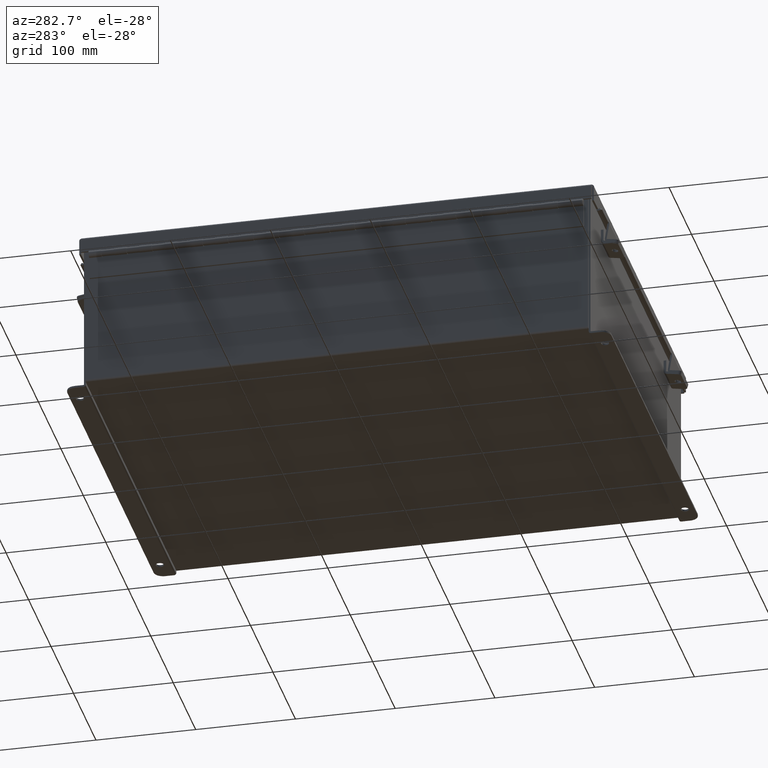
[diagram: clean part render]
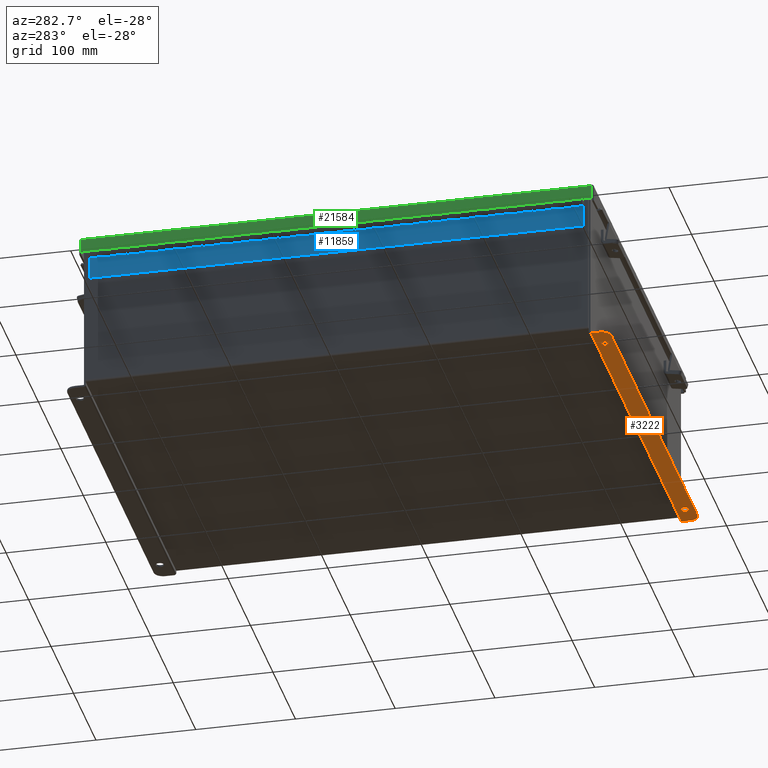
[diagram: same view with three faces highlighted in distinct colors, each labeled with its STEP entity id]
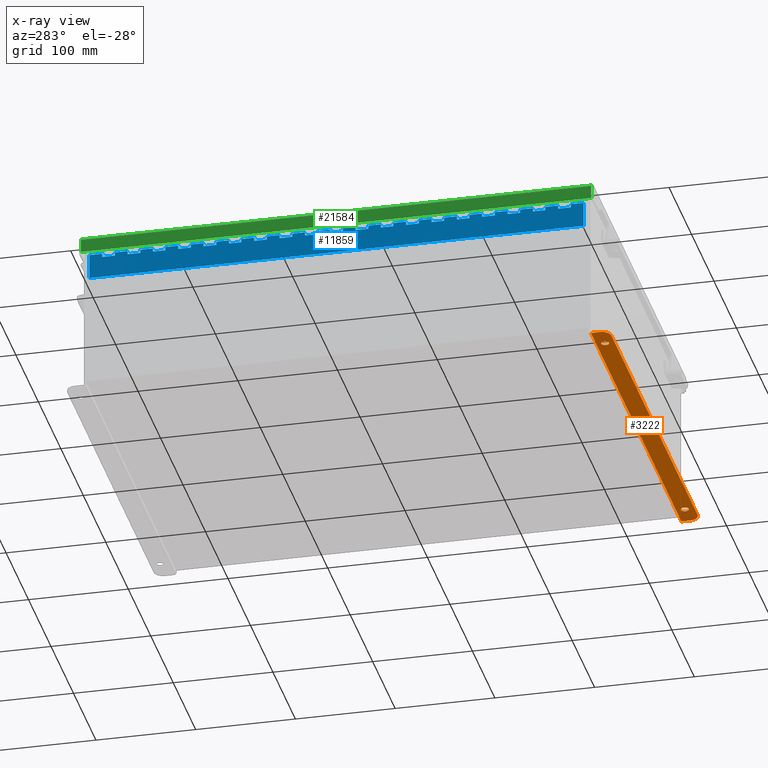
[diagram: x-ray of the same camera — body ghosted, the three highlighted faces saturated]
A machine part, auxiliary view with three faces highlighted in distinct colors.
The next image is the same camera in x-ray (body ghosted, the three faces saturated) — at least one of them is partly hidden behind the body in this view.
Their STEP definitions:

[orange] entity #3222 — the highlighted planar face has unit normal (0, -0, 1).
#298 = ORIENTED_EDGE ( 'NONE', *, *, #8450, .F. ) ;
#449 = ORIENTED_EDGE ( 'NONE', *, *, #20706, .T. ) ;
#467 = VECTOR ( 'NONE', #3204, 39.37007874015748100 ) ;
#469 = EDGE_CURVE ( 'NONE', #15045, #21324, #19618, .T. ) ;
#945 = DIRECTION ( 'NONE',  ( 0.0000000000000000000, -3.362274453740631800E-015, -1.000000000000000000 ) ) ;
#1015 = DIRECTION ( 'NONE',  ( -4.919856193148104900E-031, -1.000000000000000000, 3.702694488566362300E-015 ) ) ;
#1026 = VERTEX_POINT ( 'NONE', #6190 ) ;
#1782 = AXIS2_PLACEMENT_3D ( 'NONE', #19832, #9484, #21564 ) ;
#1811 = CIRCLE ( 'NONE', #1782, 0.3750000000000000600 ) ;
#1875 = ORIENTED_EDGE ( 'NONE', *, *, #9212, .F. ) ;
#2251 = CARTESIAN_POINT ( 'NONE',  ( 0.0000000000000000000, -1.092739197465705300E-014, -3.187000000000000300 ) ) ;
#3204 = DIRECTION ( 'NONE',  ( 4.919856193148104900E-031, 1.000000000000000000, -3.702694488566362300E-015 ) ) ;
#3222 = ADVANCED_FACE ( 'NONE', ( #14645, #18676, #5442 ), #13293, .F. ) ;
#3661 = CARTESIAN_POINT ( 'NONE',  ( 7.925299999999998200, 0.01300000000000010700, -3.187000000000000300 ) ) ;
#3877 = CARTESIAN_POINT ( 'NONE',  ( -7.925300000000000900, -1.092739197465705300E-014, -3.187000000000000300 ) ) ;
#4159 = CARTESIAN_POINT ( 'NONE',  ( -6.987800000000000900, 0.3627999999999986800, -3.187000000000001600 ) ) ;
#4717 = AXIS2_PLACEMENT_3D ( 'NONE', #13812, #10849, #14018 ) ;
#4843 = DIRECTION ( 'NONE',  ( 0.0000000000000000000, 1.000000000000000000, -3.502369222646487000E-015 ) ) ;
#5089 = CARTESIAN_POINT ( 'NONE',  ( 7.925299999999998200, 0.01300000000000229300, -3.187000000000000300 ) ) ;
#5302 = EDGE_CURVE ( 'NONE', #22197, #1026, #19408, .T. ) ;
#5342 = EDGE_LOOP ( 'NONE', ( #7282, #449, #20590, #10933, #11490, #298 ) ) ;
#5442 = FACE_OUTER_BOUND ( 'NONE', #5342, .T. ) ;
#5535 = DIRECTION ( 'NONE',  ( 0.0000000000000000000, -3.362274453740631800E-015, -1.000000000000000000 ) ) ;
#5892 = DIRECTION ( 'NONE',  ( 0.0000000000000000000, 1.000000000000000000, -3.502369222646487000E-015 ) ) ;
#5907 = EDGE_CURVE ( 'NONE', #21471, #6631, #19643, .T. ) ;
#6190 = CARTESIAN_POINT ( 'NONE',  ( -7.925300000000000900, 0.3627999999999986800, -3.187000000000005600 ) ) ;
#6566 = CARTESIAN_POINT ( 'NONE',  ( -6.987800000000000900, 0.5187999999999988200, -3.187000000000002500 ) ) ;
#6631 = VERTEX_POINT ( 'NONE', #3661 ) ;
#7067 = CARTESIAN_POINT ( 'NONE',  ( -7.925300000000000900, 0.01300000000000010700, -3.187000000000000300 ) ) ;
#7282 = ORIENTED_EDGE ( 'NONE', *, *, #5302, .T. ) ;
#7542 = CIRCLE ( 'NONE', #11962, 0.1560000000000001900 ) ;
#7991 = ORIENTED_EDGE ( 'NONE', *, *, #469, .F. ) ;
#8165 = EDGE_LOOP ( 'NONE', ( #1875, #21107 ) ) ;
#8429 = AXIS2_PLACEMENT_3D ( 'NONE', #11341, #945, #13073 ) ;
#8450 = EDGE_CURVE ( 'NONE', #22197, #6631, #21657, .T. ) ;
#9212 = EDGE_CURVE ( 'NONE', #9324, #12936, #7542, .T. ) ;
#9324 = VERTEX_POINT ( 'NONE', #13721 ) ;
#9338 = LINE ( 'NONE', #21841, #13398 ) ;
#9484 = DIRECTION ( 'NONE',  ( -0.0000000000000000000, -3.702694488566362300E-015, -1.000000000000000000 ) ) ;
#10133 = VERTEX_POINT ( 'NONE', #18779 ) ;
#10666 = AXIS2_PLACEMENT_3D ( 'NONE', #2251, #17897, #14506 ) ;
#10786 = EDGE_LOOP ( 'NONE', ( #11308, #7991 ) ) ;
#10849 = DIRECTION ( 'NONE',  ( -0.0000000000000000000, -3.702694488566362300E-015, -1.000000000000000000 ) ) ;
#10869 = EDGE_CURVE ( 'NONE', #19820, #21471, #11943, .T. ) ;
#10933 = ORIENTED_EDGE ( 'NONE', *, *, #10869, .T. ) ;
#10944 = DIRECTION ( 'NONE',  ( 0.0000000000000000000, -3.362274453740631800E-015, -1.000000000000000000 ) ) ;
#11308 = ORIENTED_EDGE ( 'NONE', *, *, #14529, .F. ) ;
#11341 = CARTESIAN_POINT ( 'NONE',  ( 6.987799999999999100, 0.3628000000000008400, -3.187000000000001200 ) ) ;
#11490 = ORIENTED_EDGE ( 'NONE', *, *, #5907, .T. ) ;
#11885 = AXIS2_PLACEMENT_3D ( 'NONE', #4159, #16232, #5892 ) ;
#11943 = CIRCLE ( 'NONE', #4717, 0.3750000000000000600 ) ;
#11962 = AXIS2_PLACEMENT_3D ( 'NONE', #22244, #10944, #4843 ) ;
#12480 = DIRECTION ( 'NONE',  ( 1.000000000000000000, 4.910036603141682400E-031, -0.0000000000000000000 ) ) ;
#12936 = VERTEX_POINT ( 'NONE', #19572 ) ;
#13073 = DIRECTION ( 'NONE',  ( 0.0000000000000000000, 1.000000000000000000, -3.502369222646487000E-015 ) ) ;
#13293 = PLANE ( 'NONE',  #10666 ) ;
#13398 = VECTOR ( 'NONE', #18428, 39.37007874015748100 ) ;
#13695 = CARTESIAN_POINT ( 'NONE',  ( 7.550299999999998200, 0.7378000000000011200, -3.187000000000002900 ) ) ;
#13721 = CARTESIAN_POINT ( 'NONE',  ( 6.987799999999999100, 0.5188000000000010400, -3.187000000000001600 ) ) ;
#13812 = CARTESIAN_POINT ( 'NONE',  ( 7.550299999999998200, 0.3628000000000008400, -3.187000000000001200 ) ) ;
#14018 = DIRECTION ( 'NONE',  ( 0.0000000000000000000, -1.000000000000000000, 4.370956789862820400E-015 ) ) ;
#14506 = DIRECTION ( 'NONE',  ( -4.919856193148104900E-031, -1.000000000000000000, 3.702694488566362300E-015 ) ) ;
#14529 = EDGE_CURVE ( 'NONE', #21324, #15045, #17132, .T. ) ;
#14645 = FACE_BOUND ( 'NONE', #10786, .T. ) ;
#14695 = EDGE_CURVE ( 'NONE', #10133, #19820, #9338, .T. ) ;
#15034 = VECTOR ( 'NONE', #1015, 39.37007874015748100 ) ;
#15045 = VERTEX_POINT ( 'NONE', #17576 ) ;
#16232 = DIRECTION ( 'NONE',  ( 0.0000000000000000000, -3.362274453740631800E-015, -1.000000000000000000 ) ) ;
#16934 = CARTESIAN_POINT ( 'NONE',  ( 7.925299999999998200, -1.092739197465705300E-014, -3.187000000000000300 ) ) ;
#17132 = CIRCLE ( 'NONE', #11885, 0.1560000000000001900 ) ;
#17576 = CARTESIAN_POINT ( 'NONE',  ( -6.987799999999992900, 0.2067999999999984900, -3.187000000000001200 ) ) ;
#17897 = DIRECTION ( 'NONE',  ( 0.0000000000000000000, 3.702694488566362300E-015, 1.000000000000000000 ) ) ;
#18192 = DIRECTION ( 'NONE',  ( 0.0000000000000000000, 1.000000000000000000, -3.502369222646487000E-015 ) ) ;
#18414 = AXIS2_PLACEMENT_3D ( 'NONE', #21655, #5535, #18192 ) ;
#18428 = DIRECTION ( 'NONE',  ( 1.000000000000000000, 4.910036603141682400E-031, 0.0000000000000000000 ) ) ;
#18676 = FACE_BOUND ( 'NONE', #8165, .T. ) ;
#18779 = CARTESIAN_POINT ( 'NONE',  ( -7.550300000000000900, 0.7377999999999989000, -3.187000000000002900 ) ) ;
#19019 = CARTESIAN_POINT ( 'NONE',  ( 7.925299999999998200, 0.3628000000000008400, -3.187000000000001600 ) ) ;
#19408 = LINE ( 'NONE', #3877, #467 ) ;
#19572 = CARTESIAN_POINT ( 'NONE',  ( 6.987800000000008000, 0.2068000000000006800, -3.187000000000000700 ) ) ;
#19618 = CIRCLE ( 'NONE', #18414, 0.1560000000000001900 ) ;
#19643 = LINE ( 'NONE', #16934, #15034 ) ;
#19820 = VERTEX_POINT ( 'NONE', #13695 ) ;
#19832 = CARTESIAN_POINT ( 'NONE',  ( -7.550300000000000900, 0.3627999999999986800, -3.187000000000001200 ) ) ;
#20229 = EDGE_CURVE ( 'NONE', #12936, #9324, #20771, .T. ) ;
#20590 = ORIENTED_EDGE ( 'NONE', *, *, #14695, .T. ) ;
#20706 = EDGE_CURVE ( 'NONE', #1026, #10133, #1811, .T. ) ;
#20771 = CIRCLE ( 'NONE', #8429, 0.1560000000000001900 ) ;
#21107 = ORIENTED_EDGE ( 'NONE', *, *, #20229, .F. ) ;
#21324 = VERTEX_POINT ( 'NONE', #6566 ) ;
#21471 = VERTEX_POINT ( 'NONE', #19019 ) ;
#21564 = DIRECTION ( 'NONE',  ( 0.0000000000000000000, -1.000000000000000000, 4.370956789862820400E-015 ) ) ;
#21655 = CARTESIAN_POINT ( 'NONE',  ( -6.987800000000000900, 0.3627999999999986800, -3.187000000000001600 ) ) ;
#21657 = LINE ( 'NONE', #5089, #22205 ) ;
#21841 = CARTESIAN_POINT ( 'NONE',  ( -2.035385365534024800E-024, 0.7377999999999989000, -3.187000000000002900 ) ) ;
#22197 = VERTEX_POINT ( 'NONE', #7067 ) ;
#22205 = VECTOR ( 'NONE', #12480, 39.37007874015748100 ) ;
#22244 = CARTESIAN_POINT ( 'NONE',  ( 6.987799999999999100, 0.3628000000000008400, -3.187000000000001200 ) ) ;

[blue] entity #11859 — the highlighted planar face has unit normal (1, -0, 0).
#219 = CARTESIAN_POINT ( 'NONE',  ( 0.2730000000000000200, 8.500000000000000000, 0.0000000000000000000 ) ) ;
#224 = ORIENTED_EDGE ( 'NONE', *, *, #6878, .F. ) ;
#270 = VERTEX_POINT ( 'NONE', #5692 ) ;
#346 = DIRECTION ( 'NONE',  ( 0.0000000000000000000, 1.000000000000000000, 0.0000000000000000000 ) ) ;
#371 = DIRECTION ( 'NONE',  ( 0.0000000000000000000, 1.000000000000000000, 0.0000000000000000000 ) ) ;
#397 = ORIENTED_EDGE ( 'NONE', *, *, #9881, .F. ) ;
#448 = ORIENTED_EDGE ( 'NONE', *, *, #16978, .F. ) ;
#475 = VECTOR ( 'NONE', #5372, 39.37007874015748100 ) ;
#549 = VECTOR ( 'NONE', #9574, 39.37007874015748100 ) ;
#567 = VECTOR ( 'NONE', #19495, 39.37007874015748100 ) ;
#770 = FACE_OUTER_BOUND ( 'NONE', #4232, .T. ) ;
#788 = VERTEX_POINT ( 'NONE', #7934 ) ;
#865 = CARTESIAN_POINT ( 'NONE',  ( 0.1365000000000000100, 14.00000000000000000, -1.707404996040164500E-017 ) ) ;
#902 = VERTEX_POINT ( 'NONE', #14494 ) ;
#911 = CARTESIAN_POINT ( 'NONE',  ( 0.2730000000000000200, -8.000000000000000000, 0.0000000000000000000 ) ) ;
#939 = EDGE_CURVE ( 'NONE', #1260, #2361, #19599, .T. ) ;
#956 = VECTOR ( 'NONE', #2401, 39.37007874015748100 ) ;
#989 = LINE ( 'NONE', #6699, #9125 ) ;
#1085 = LINE ( 'NONE', #7810, #549 ) ;
#1168 = DIRECTION ( 'NONE',  ( 0.0000000000000000000, 1.000000000000000000, 0.0000000000000000000 ) ) ;
#1260 = VERTEX_POINT ( 'NONE', #22180 ) ;
#1323 = ORIENTED_EDGE ( 'NONE', *, *, #17205, .F. ) ;
#1365 = DIRECTION ( 'NONE',  ( -1.000000000000000000, 0.0000000000000000000, 0.0000000000000000000 ) ) ;
#1408 = EDGE_CURVE ( 'NONE', #15363, #5109, #7401, .T. ) ;
#1424 = VECTOR ( 'NONE', #10858, 39.37007874015748100 ) ;
#1454 = CARTESIAN_POINT ( 'NONE',  ( 0.0000000000000000000, 0.4999999999999996100, 0.0000000000000000000 ) ) ;
#1473 = VECTOR ( 'NONE', #3225, 39.37007874015748100 ) ;
#1545 = VECTOR ( 'NONE', #18917, 39.37007874015748100 ) ;
#1547 = CARTESIAN_POINT ( 'NONE',  ( 0.0000000000000000000, 16.50000000000000000, 0.0000000000000000000 ) ) ;
#1561 = DIRECTION ( 'NONE',  ( -1.000000000000000000, 8.005415366049124900E-015, 0.0000000000000000000 ) ) ;
#1567 = CARTESIAN_POINT ( 'NONE',  ( 0.2730000000000000200, 17.99999999999999600, 0.0000000000000000000 ) ) ;
#1575 = ORIENTED_EDGE ( 'NONE', *, *, #19588, .F. ) ;
#1621 = VECTOR ( 'NONE', #8564, 39.37007874015748100 ) ;
#1700 = VECTOR ( 'NONE', #11942, 39.37007874015748100 ) ;
#1742 = CARTESIAN_POINT ( 'NONE',  ( 0.2730000000000000200, -17.00000000000000000, 0.0000000000000000000 ) ) ;
#1753 = ORIENTED_EDGE ( 'NONE', *, *, #12535, .T. ) ;
#1808 = DIRECTION ( 'NONE',  ( -1.000000000000000000, 8.005415366049124900E-015, 0.0000000000000000000 ) ) ;
#1840 = LINE ( 'NONE', #14577, #10519 ) ;
#1851 = CARTESIAN_POINT ( 'NONE',  ( 0.2730000000000000200, 1.500000000000000900, 0.0000000000000000000 ) ) ;
#1891 = CARTESIAN_POINT ( 'NONE',  ( 1.521028919549333600E-013, 15.00000000000000000, 0.0000000000000000000 ) ) ;
#1916 = CARTESIAN_POINT ( 'NONE',  ( 1.521028919549333600E-013, 16.00000000000000000, 0.0000000000000000000 ) ) ;
#1936 = LINE ( 'NONE', #4490, #10057 ) ;
#2024 = CARTESIAN_POINT ( 'NONE',  ( 0.2730000000000000200, -7.000000000000000000, 0.0000000000000000000 ) ) ;
#2038 = EDGE_CURVE ( 'NONE', #14172, #8484, #8179, .T. ) ;
#2054 = VECTOR ( 'NONE', #10138, 39.37007874015748100 ) ;
#2090 = CARTESIAN_POINT ( 'NONE',  ( 0.2730000000000000200, 16.50000000000000000, 0.0000000000000000000 ) ) ;
#2091 = ORIENTED_EDGE ( 'NONE', *, *, #17510, .F. ) ;
#2118 = AXIS2_PLACEMENT_3D ( 'NONE', #22317, #12138, #3888 ) ;
#2145 = LINE ( 'NONE', #14848, #10825 ) ;
#2318 = VERTEX_POINT ( 'NONE', #7473 ) ;
#2327 = ORIENTED_EDGE ( 'NONE', *, *, #11067, .F. ) ;
#2361 = VERTEX_POINT ( 'NONE', #5957 ) ;
#2387 = VECTOR ( 'NONE', #21010, 39.37007874015748100 ) ;
#2401 = DIRECTION ( 'NONE',  ( 1.000000000000000000, 0.0000000000000000000, 0.0000000000000000000 ) ) ;
#2425 = VERTEX_POINT ( 'NONE', #9556 ) ;
#2455 = LINE ( 'NONE', #10701, #20313 ) ;
#2458 = ORIENTED_EDGE ( 'NONE', *, *, #13628, .T. ) ;
#2535 = VECTOR ( 'NONE', #8293, 39.37007874015748100 ) ;
#2553 = LINE ( 'NONE', #12080, #11806 ) ;
#2559 = LINE ( 'NONE', #10784, #12886 ) ;
#2576 = EDGE_CURVE ( 'NONE', #8549, #10815, #8156, .T. ) ;
#2645 = VECTOR ( 'NONE', #21475, 39.37007874015748100 ) ;
#2664 = CARTESIAN_POINT ( 'NONE',  ( 0.2730000000000000200, -11.99999999999999800, 0.0000000000000000000 ) ) ;
#2694 = CARTESIAN_POINT ( 'NONE',  ( 0.1365000000000000100, 9.500000000000000000, -1.707404996040164500E-017 ) ) ;
#2724 = VECTOR ( 'NONE', #3426, 39.37007874015748100 ) ;
#2729 = VECTOR ( 'NONE', #19373, 39.37007874015748100 ) ;
#2775 = VERTEX_POINT ( 'NONE', #12098 ) ;
#2840 = EDGE_CURVE ( 'NONE', #19081, #2425, #16518, .T. ) ;
#2842 = VERTEX_POINT ( 'NONE', #17811 ) ;
#2854 = ORIENTED_EDGE ( 'NONE', *, *, #22067, .F. ) ;
#2869 = CARTESIAN_POINT ( 'NONE',  ( 1.136500000000000100, 0.0000000000000000000, 0.0000000000000000000 ) ) ;
#2874 = ORIENTED_EDGE ( 'NONE', *, *, #20674, .F. ) ;
#2934 = CARTESIAN_POINT ( 'NONE',  ( 0.2730000000000000200, -16.00000000000000000, 0.0000000000000000000 ) ) ;
#3071 = VERTEX_POINT ( 'NONE', #12810 ) ;
#3082 = DIRECTION ( 'NONE',  ( 0.0000000000000000000, 1.000000000000000000, 0.0000000000000000000 ) ) ;
#3093 = ORIENTED_EDGE ( 'NONE', *, *, #18452, .F. ) ;
#3118 = DIRECTION ( 'NONE',  ( 0.0000000000000000000, 1.000000000000000000, 0.0000000000000000000 ) ) ;
#3136 = CARTESIAN_POINT ( 'NONE',  ( 0.1365000000000000100, 1.500000000000000900, -1.707404996040164500E-017 ) ) ;
#3171 = VERTEX_POINT ( 'NONE', #2090 ) ;
#3208 = ORIENTED_EDGE ( 'NONE', *, *, #14317, .T. ) ;
#3218 = EDGE_CURVE ( 'NONE', #6142, #9742, #1936, .T. ) ;
#3225 = DIRECTION ( 'NONE',  ( 0.0000000000000000000, 1.000000000000000000, 0.0000000000000000000 ) ) ;
#3259 = CARTESIAN_POINT ( 'NONE',  ( 0.1365000000000000100, 19.50000000000000000, -1.707404996040164500E-017 ) ) ;
#3260 = EDGE_CURVE ( 'NONE', #20116, #20107, #19228, .T. ) ;
#3369 = EDGE_CURVE ( 'NONE', #788, #7029, #2145, .T. ) ;
#3397 = CARTESIAN_POINT ( 'NONE',  ( 0.2730000000000000200, 17.50000000000000000, 0.0000000000000000000 ) ) ;
#3426 = DIRECTION ( 'NONE',  ( -1.000000000000000000, 8.005415366049124900E-015, 0.0000000000000000000 ) ) ;
#3439 = LINE ( 'NONE', #18485, #21323 ) ;
#3464 = LINE ( 'NONE', #13945, #12184 ) ;
#3500 = LINE ( 'NONE', #21890, #12226 ) ;
#3557 = ORIENTED_EDGE ( 'NONE', *, *, #16063, .T. ) ;
#3565 = ORIENTED_EDGE ( 'NONE', *, *, #14991, .T. ) ;
#3612 = VECTOR ( 'NONE', #5554, 39.37007874015748100 ) ;
#3697 = LINE ( 'NONE', #22078, #12417 ) ;
#3813 = CARTESIAN_POINT ( 'NONE',  ( 0.1365000000000000100, 18.00000000000000000, -1.707404996040164500E-017 ) ) ;
#3853 = EDGE_CURVE ( 'NONE', #902, #10080, #16437, .T. ) ;
#3875 = CARTESIAN_POINT ( 'NONE',  ( 0.1365000000000000100, 10.00000000000000000, -1.707404996040164500E-017 ) ) ;
#3888 = DIRECTION ( 'NONE',  ( -1.000000000000000000, 0.0000000000000000000, -0.0000000000000000000 ) ) ;
#3911 = CARTESIAN_POINT ( 'NONE',  ( 0.1365000000000000100, 7.000000000000000000, -1.707404996040164500E-017 ) ) ;
#3918 = LINE ( 'NONE', #14903, #7971 ) ;
#3925 = VECTOR ( 'NONE', #1808, 39.37007874015748100 ) ;
#3973 = CARTESIAN_POINT ( 'NONE',  ( 0.1365000000000000100, 18.50000000000000000, -1.707404996040164500E-017 ) ) ;
#3979 = VECTOR ( 'NONE', #8896, 39.37007874015748100 ) ;
#4017 = LINE ( 'NONE', #9238, #21883 ) ;
#4051 = CARTESIAN_POINT ( 'NONE',  ( 0.2730000000000000200, 5.500000000000000000, 0.0000000000000000000 ) ) ;
#4055 = VERTEX_POINT ( 'NONE', #9050 ) ;
#4124 = EDGE_CURVE ( 'NONE', #4698, #20107, #20219, .T. ) ;
#4131 = LINE ( 'NONE', #4813, #7634 ) ;
#4151 = EDGE_CURVE ( 'NONE', #13872, #9798, #1840, .T. ) ;
#4232 = EDGE_LOOP ( 'NONE', ( #5080, #8426, #2458, #15956, #10987, #2874, #20801, #17405, #4628, #21903, #20830, #7236, #12806, #6217, #18689, #11185, #3557, #19146, #11424, #11880, #7166, #15718, #19845, #3093, #13093, #11157, #397, #19083, #10928, #1575, #11344, #224, #18950, #21682, #2854, #4471, #3565, #14586, #20506, #10694, #7318, #9364, #9527, #18437, #1753, #19362, #20470, #12512, #19498, #4481, #12818, #10843, #13523, #5519, #20070, #11297, #18771, #15070, #13088, #19737, #7933, #20873, #13178, #9289, #7499, #7617, #1323, #14560, #17446, #6486, #2091, #17455, #11098, #2327, #10424, #448, #3208, #9659, #6798, #16869 ) ) ;
#4234 = VERTEX_POINT ( 'NONE', #19010 ) ;
#4257 = LINE ( 'NONE', #5969, #22119 ) ;
#4364 = DIRECTION ( 'NONE',  ( -1.000000000000000000, 8.005415366049124900E-015, 0.0000000000000000000 ) ) ;
#4377 = CARTESIAN_POINT ( 'NONE',  ( 0.2730000000000000200, -10.00000000000000000, 0.0000000000000000000 ) ) ;
#4471 = ORIENTED_EDGE ( 'NONE', *, *, #4577, .F. ) ;
#4481 = ORIENTED_EDGE ( 'NONE', *, *, #14811, .F. ) ;
#4490 = CARTESIAN_POINT ( 'NONE',  ( 1.521028919549333600E-013, 17.00000000000000000, 0.0000000000000000000 ) ) ;
#4577 = EDGE_CURVE ( 'NONE', #18118, #2318, #17770, .T. ) ;
#4589 = CARTESIAN_POINT ( 'NONE',  ( 0.1365000000000000100, 0.0000000000000000000, -1.707404996040164500E-017 ) ) ;
#4592 = DIRECTION ( 'NONE',  ( 0.0000000000000000000, 1.000000000000000000, 0.0000000000000000000 ) ) ;
#4602 = VERTEX_POINT ( 'NONE', #3973 ) ;
#4628 = ORIENTED_EDGE ( 'NONE', *, *, #5686, .T. ) ;
#4698 = VERTEX_POINT ( 'NONE', #14031 ) ;
#4766 = CARTESIAN_POINT ( 'NONE',  ( 0.2730000000000000200, 10.50000000000000000, 0.0000000000000000000 ) ) ;
#4813 = CARTESIAN_POINT ( 'NONE',  ( 1.136500000000000100, 0.0000000000000000000, 0.0000000000000000000 ) ) ;
#4831 = VERTEX_POINT ( 'NONE', #14525 ) ;
#4845 = EDGE_CURVE ( 'NONE', #22378, #11904, #18333, .T. ) ;
#4930 = VECTOR ( 'NONE', #21876, 39.37007874015748100 ) ;
#4951 = DIRECTION ( 'NONE',  ( -1.000000000000000000, 0.0000000000000000000, 0.0000000000000000000 ) ) ;
#5050 = LINE ( 'NONE', #20889, #475 ) ;
#5080 = ORIENTED_EDGE ( 'NONE', *, *, #10941, .T. ) ;
#5081 = VECTOR ( 'NONE', #3082, 39.37007874015748100 ) ;
#5088 = DIRECTION ( 'NONE',  ( -1.000000000000000000, 8.005415366049124900E-015, 0.0000000000000000000 ) ) ;
#5109 = VERTEX_POINT ( 'NONE', #18532 ) ;
#5163 = DIRECTION ( 'NONE',  ( 0.0000000000000000000, 1.000000000000000000, 0.0000000000000000000 ) ) ;
#5186 = DIRECTION ( 'NONE',  ( 0.0000000000000000000, 1.000000000000000000, 0.0000000000000000000 ) ) ;
#5251 = VERTEX_POINT ( 'NONE', #2869 ) ;
#5253 = CARTESIAN_POINT ( 'NONE',  ( 0.1365000000000000100, 17.50000000000000000, -1.707404996040164500E-017 ) ) ;
#5331 = LINE ( 'NONE', #13166, #14036 ) ;
#5358 = VERTEX_POINT ( 'NONE', #16789 ) ;
#5372 = DIRECTION ( 'NONE',  ( 0.0000000000000000000, 1.000000000000000000, 0.0000000000000000000 ) ) ;
#5377 = VECTOR ( 'NONE', #14998, 39.37007874015748100 ) ;
#5399 = VERTEX_POINT ( 'NONE', #6560 ) ;
#5456 = VECTOR ( 'NONE', #8503, 39.37007874015748100 ) ;
#5519 = ORIENTED_EDGE ( 'NONE', *, *, #9098, .F. ) ;
#5554 = DIRECTION ( 'NONE',  ( -1.000000000000000000, 0.0000000000000000000, 0.0000000000000000000 ) ) ;
#5569 = LINE ( 'NONE', #2664, #6076 ) ;
#5577 = DIRECTION ( 'NONE',  ( 0.0000000000000000000, 1.000000000000000000, 0.0000000000000000000 ) ) ;
#5651 = EDGE_CURVE ( 'NONE', #20899, #17571, #11304, .T. ) ;
#5674 = LINE ( 'NONE', #1454, #9741 ) ;
#5686 = EDGE_CURVE ( 'NONE', #3071, #4602, #19928, .T. ) ;
#5692 = CARTESIAN_POINT ( 'NONE',  ( 0.1365000000000000100, 3.499999999999999100, -1.707404996040164500E-017 ) ) ;
#5694 = VECTOR ( 'NONE', #19847, 39.37007874015748100 ) ;
#5834 = VERTEX_POINT ( 'NONE', #10418 ) ;
#5838 = DIRECTION ( 'NONE',  ( -1.000000000000000000, 0.0000000000000000000, 0.0000000000000000000 ) ) ;
#5933 = VERTEX_POINT ( 'NONE', #1851 ) ;
#5946 = LINE ( 'NONE', #10058, #18660 ) ;
#5957 = CARTESIAN_POINT ( 'NONE',  ( 0.2730000000000000200, 9.999999999999996400, 0.0000000000000000000 ) ) ;
#5969 = CARTESIAN_POINT ( 'NONE',  ( 0.0000000000000000000, 19.50000000000000000, 0.0000000000000000000 ) ) ;
#6034 = LINE ( 'NONE', #11975, #1473 ) ;
#6076 = VECTOR ( 'NONE', #4592, 39.37007874015748100 ) ;
#6121 = CARTESIAN_POINT ( 'NONE',  ( 0.2730000000000000200, 7.999999999999997300, 0.0000000000000000000 ) ) ;
#6122 = EDGE_CURVE ( 'NONE', #15140, #9160, #21004, .T. ) ;
#6138 = LINE ( 'NONE', #12241, #19952 ) ;
#6142 = VERTEX_POINT ( 'NONE', #9512 ) ;
#6151 = EDGE_CURVE ( 'NONE', #5834, #5358, #6639, .T. ) ;
#6217 = ORIENTED_EDGE ( 'NONE', *, *, #20475, .F. ) ;
#6461 = EDGE_CURVE ( 'NONE', #11277, #19549, #18520, .T. ) ;
#6486 = ORIENTED_EDGE ( 'NONE', *, *, #10370, .F. ) ;
#6492 = EDGE_CURVE ( 'NONE', #22010, #270, #8242, .T. ) ;
#6556 = VERTEX_POINT ( 'NONE', #865 ) ;
#6560 = CARTESIAN_POINT ( 'NONE',  ( 0.2730000000000000200, 15.50000000000000000, 0.0000000000000000000 ) ) ;
#6563 = CARTESIAN_POINT ( 'NONE',  ( 0.1365000000000000100, 0.0000000000000000000, -1.707404996040164500E-017 ) ) ;
#6587 = EDGE_CURVE ( 'NONE', #21660, #20709, #2559, .T. ) ;
#6639 = LINE ( 'NONE', #14164, #19902 ) ;
#6669 = LINE ( 'NONE', #15506, #7228 ) ;
#6676 = CARTESIAN_POINT ( 'NONE',  ( 1.521028919549333600E-013, 11.99999999999999800, 0.0000000000000000000 ) ) ;
#6699 = CARTESIAN_POINT ( 'NONE',  ( 0.0000000000000000000, 7.500000000000000000, 0.0000000000000000000 ) ) ;
#6722 = LINE ( 'NONE', #8272, #15377 ) ;
#6754 = EDGE_CURVE ( 'NONE', #7029, #21718, #3918, .T. ) ;
#6798 = ORIENTED_EDGE ( 'NONE', *, *, #4151, .F. ) ;
#6839 = CARTESIAN_POINT ( 'NONE',  ( 0.0000000000000000000, 2.500000000000000000, 0.0000000000000000000 ) ) ;
#6875 = CARTESIAN_POINT ( 'NONE',  ( 0.2730000000000000200, -13.00000000000000000, 0.0000000000000000000 ) ) ;
#6878 = EDGE_CURVE ( 'NONE', #21660, #19595, #9017, .T. ) ;
#6887 = CARTESIAN_POINT ( 'NONE',  ( 0.1365000000000000100, 6.500000000000000900, -1.707404996040164500E-017 ) ) ;
#6989 = VERTEX_POINT ( 'NONE', #20672 ) ;
#7029 = VERTEX_POINT ( 'NONE', #6121 ) ;
#7151 = LINE ( 'NONE', #6563, #2535 ) ;
#7156 = DIRECTION ( 'NONE',  ( -1.000000000000000000, 0.0000000000000000000, 0.0000000000000000000 ) ) ;
#7166 = ORIENTED_EDGE ( 'NONE', *, *, #9663, .T. ) ;
#7195 = EDGE_CURVE ( 'NONE', #5251, #11684, #4131, .T. ) ;
#7220 = VECTOR ( 'NONE', #14548, 39.37007874015748100 ) ;
#7228 = VECTOR ( 'NONE', #5163, 39.37007874015748100 ) ;
#7236 = ORIENTED_EDGE ( 'NONE', *, *, #17826, .F. ) ;
#7279 = VERTEX_POINT ( 'NONE', #3875 ) ;
#7318 = ORIENTED_EDGE ( 'NONE', *, *, #14443, .T. ) ;
#7328 = CARTESIAN_POINT ( 'NONE',  ( 0.0000000000000000000, 13.50000000000000000, 0.0000000000000000000 ) ) ;
#7394 = CARTESIAN_POINT ( 'NONE',  ( 1.521028919549333600E-013, 3.999999999999998700, 0.0000000000000000000 ) ) ;
#7401 = LINE ( 'NONE', #2934, #17111 ) ;
#7447 = CARTESIAN_POINT ( 'NONE',  ( 0.2730000000000000200, 5.999999999999997300, 0.0000000000000000000 ) ) ;
#7457 = CARTESIAN_POINT ( 'NONE',  ( 0.1365000000000000100, 0.0000000000000000000, -1.707404996040164500E-017 ) ) ;
#7473 = CARTESIAN_POINT ( 'NONE',  ( 0.2730000000000000200, 11.99999999999999800, 0.0000000000000000000 ) ) ;
#7493 = VERTEX_POINT ( 'NONE', #21379 ) ;
#7499 = ORIENTED_EDGE ( 'NONE', *, *, #16312, .T. ) ;
#7562 = DIRECTION ( 'NONE',  ( -1.000000000000000000, -0.0000000000000000000, -0.0000000000000000000 ) ) ;
#7601 = CARTESIAN_POINT ( 'NONE',  ( 0.2730000000000000200, -5.999999999999999100, 0.0000000000000000000 ) ) ;
#7612 = CARTESIAN_POINT ( 'NONE',  ( 1.136500000000000100, 19.50000000000000000, 0.0000000000000000000 ) ) ;
#7617 = ORIENTED_EDGE ( 'NONE', *, *, #17949, .F. ) ;
#7634 = VECTOR ( 'NONE', #19057, 39.37007874015748100 ) ;
#7709 = EDGE_CURVE ( 'NONE', #2425, #18910, #11723, .T. ) ;
#7713 = VECTOR ( 'NONE', #14836, 39.37007874015748100 ) ;
#7717 = VERTEX_POINT ( 'NONE', #18927 ) ;
#7727 = VERTEX_POINT ( 'NONE', #11477 ) ;
#7773 = EDGE_CURVE ( 'NONE', #15363, #19189, #14658, .T. ) ;
#7804 = VECTOR ( 'NONE', #346, 39.37007874015748100 ) ;
#7810 = CARTESIAN_POINT ( 'NONE',  ( 0.1365000000000000100, 0.0000000000000000000, -1.707404996040164500E-017 ) ) ;
#7861 = CARTESIAN_POINT ( 'NONE',  ( 0.1365000000000000100, 0.4999999999999996100, -1.707404996040164500E-017 ) ) ;
#7899 = DIRECTION ( 'NONE',  ( 0.0000000000000000000, 1.000000000000000000, 0.0000000000000000000 ) ) ;
#7906 = VECTOR ( 'NONE', #3118, 39.37007874015748100 ) ;
#7911 = EDGE_CURVE ( 'NONE', #9160, #10080, #8416, .T. ) ;
#7933 = ORIENTED_EDGE ( 'NONE', *, *, #3260, .T. ) ;
#7934 = CARTESIAN_POINT ( 'NONE',  ( 0.2730000000000000200, 7.500000000000000000, 0.0000000000000000000 ) ) ;
#7971 = VECTOR ( 'NONE', #20118, 39.37007874015748100 ) ;
#7983 = CARTESIAN_POINT ( 'NONE',  ( 0.0000000000000000000, 0.0000000000000000000, 0.0000000000000000000 ) ) ;
#7995 = LINE ( 'NONE', #19590, #21272 ) ;
#8001 = EDGE_CURVE ( 'NONE', #2775, #17209, #17599, .T. ) ;
#8086 = VECTOR ( 'NONE', #18784, 39.37007874015748100 ) ;
#8089 = LINE ( 'NONE', #15446, #21368 ) ;
#8147 = CARTESIAN_POINT ( 'NONE',  ( 0.2730000000000000200, 12.99999999999999800, 0.0000000000000000000 ) ) ;
#8156 = LINE ( 'NONE', #18399, #16791 ) ;
#8179 = LINE ( 'NONE', #1916, #16813 ) ;
#8201 = CARTESIAN_POINT ( 'NONE',  ( 1.521028919549333600E-013, 7.000000000000000900, 0.0000000000000000000 ) ) ;
#8233 = CARTESIAN_POINT ( 'NONE',  ( 0.1365000000000000100, 5.999999999999998200, -1.707404996040164500E-017 ) ) ;
#8242 = LINE ( 'NONE', #8258, #17430 ) ;
#8249 = CARTESIAN_POINT ( 'NONE',  ( 0.1365000000000000100, 0.0000000000000000000, -1.707404996040164500E-017 ) ) ;
#8258 = CARTESIAN_POINT ( 'NONE',  ( 0.0000000000000000000, 3.499999999999999100, 0.0000000000000000000 ) ) ;
#8267 = EDGE_CURVE ( 'NONE', #15741, #4698, #2455, .T. ) ;
#8272 = CARTESIAN_POINT ( 'NONE',  ( 0.1365000000000000100, 0.0000000000000000000, -1.707404996040164500E-017 ) ) ;
#8293 = DIRECTION ( 'NONE',  ( 0.0000000000000000000, 1.000000000000000000, 0.0000000000000000000 ) ) ;
#8296 = VERTEX_POINT ( 'NONE', #16459 ) ;
#8388 = CARTESIAN_POINT ( 'NONE',  ( 0.1365000000000000100, 11.50000000000000200, -1.707404996040164500E-017 ) ) ;
#8416 = LINE ( 'NONE', #9176, #21679 ) ;
#8426 = ORIENTED_EDGE ( 'NONE', *, *, #4845, .F. ) ;
#8431 = CARTESIAN_POINT ( 'NONE',  ( 0.2730000000000000200, 18.99999999999999600, 0.0000000000000000000 ) ) ;
#8484 = VERTEX_POINT ( 'NONE', #14743 ) ;
#8503 = DIRECTION ( 'NONE',  ( -1.000000000000000000, 0.0000000000000000000, 0.0000000000000000000 ) ) ;
#8549 = VERTEX_POINT ( 'NONE', #8431 ) ;
#8564 = DIRECTION ( 'NONE',  ( 0.0000000000000000000, 1.000000000000000000, 0.0000000000000000000 ) ) ;
#8646 = CARTESIAN_POINT ( 'NONE',  ( 0.1365000000000000100, 4.500000000000000900, -1.707404996040164500E-017 ) ) ;
#8842 = CARTESIAN_POINT ( 'NONE',  ( 0.0000000000000000000, 10.50000000000000000, 0.0000000000000000000 ) ) ;
#8872 = LINE ( 'NONE', #14347, #17513 ) ;
#8896 = DIRECTION ( 'NONE',  ( 0.0000000000000000000, 1.000000000000000000, 0.0000000000000000000 ) ) ;
#8995 = CARTESIAN_POINT ( 'NONE',  ( 0.2730000000000000200, -2.999999999999999600, 0.0000000000000000000 ) ) ;
#9017 = LINE ( 'NONE', #7601, #4930 ) ;
#9050 = CARTESIAN_POINT ( 'NONE',  ( 0.1365000000000000100, 14.49999999999999800, -1.707404996040164500E-017 ) ) ;
#9054 = VERTEX_POINT ( 'NONE', #8646 ) ;
#9065 = VECTOR ( 'NONE', #14112, 39.37007874015748100 ) ;
#9098 = EDGE_CURVE ( 'NONE', #17209, #21026, #10298, .T. ) ;
#9125 = VECTOR ( 'NONE', #4951, 39.37007874015748100 ) ;
#9160 = VERTEX_POINT ( 'NONE', #8233 ) ;
#9176 = CARTESIAN_POINT ( 'NONE',  ( 0.1365000000000000100, 0.0000000000000000000, -1.707404996040164500E-017 ) ) ;
#9184 = VERTEX_POINT ( 'NONE', #13417 ) ;
#9200 = VECTOR ( 'NONE', #11122, 39.37007874015748100 ) ;
#9205 = EDGE_CURVE ( 'NONE', #8296, #22286, #8089, .T. ) ;
#9238 = CARTESIAN_POINT ( 'NONE',  ( 0.2730000000000000200, -14.00000000000000000, 0.0000000000000000000 ) ) ;
#9289 = ORIENTED_EDGE ( 'NONE', *, *, #9621, .F. ) ;
#9364 = ORIENTED_EDGE ( 'NONE', *, *, #19564, .F. ) ;
#9512 = CARTESIAN_POINT ( 'NONE',  ( 0.2730000000000000200, 16.99999999999999600, 0.0000000000000000000 ) ) ;
#9522 = CARTESIAN_POINT ( 'NONE',  ( 0.2730000000000000200, 0.9999999999999970000, 0.0000000000000000000 ) ) ;
#9527 = ORIENTED_EDGE ( 'NONE', *, *, #13829, .F. ) ;
#9556 = CARTESIAN_POINT ( 'NONE',  ( 0.2730000000000000200, 10.99999999999999800, 0.0000000000000000000 ) ) ;
#9563 = EDGE_CURVE ( 'NONE', #5399, #14172, #18885, .T. ) ;
#9569 = EDGE_CURVE ( 'NONE', #9798, #15439, #9719, .T. ) ;
#9574 = DIRECTION ( 'NONE',  ( 0.0000000000000000000, 1.000000000000000000, 0.0000000000000000000 ) ) ;
#9621 = EDGE_CURVE ( 'NONE', #4234, #15741, #4017, .T. ) ;
#9627 = LINE ( 'NONE', #7983, #956 ) ;
#9655 = CARTESIAN_POINT ( 'NONE',  ( 0.0000000000000000000, 5.500000000000000000, 0.0000000000000000000 ) ) ;
#9659 = ORIENTED_EDGE ( 'NONE', *, *, #9569, .F. ) ;
#9663 = EDGE_CURVE ( 'NONE', #5399, #22286, #3464, .T. ) ;
#9719 = LINE ( 'NONE', #7457, #13799 ) ;
#9731 = EDGE_CURVE ( 'NONE', #12664, #8296, #16176, .T. ) ;
#9741 = VECTOR ( 'NONE', #19719, 39.37007874015748100 ) ;
#9742 = VERTEX_POINT ( 'NONE', #12289 ) ;
#9766 = DIRECTION ( 'NONE',  ( 0.0000000000000000000, 1.000000000000000000, 0.0000000000000000000 ) ) ;
#9772 = LINE ( 'NONE', #7394, #567 ) ;
#9798 = VERTEX_POINT ( 'NONE', #12252 ) ;
#9881 = EDGE_CURVE ( 'NONE', #5358, #6556, #8872, .T. ) ;
#9907 = DIRECTION ( 'NONE',  ( 0.0000000000000000000, 1.000000000000000000, 0.0000000000000000000 ) ) ;
#10018 = CARTESIAN_POINT ( 'NONE',  ( 0.0000000000000000000, 6.500000000000000900, 0.0000000000000000000 ) ) ;
#10030 = CARTESIAN_POINT ( 'NONE',  ( 0.1365000000000000100, 13.00000000000000000, -1.707404996040164500E-017 ) ) ;
#10057 = VECTOR ( 'NONE', #15885, 39.37007874015748100 ) ;
#10058 = CARTESIAN_POINT ( 'NONE',  ( 0.2730000000000000200, -18.00000000000000000, 0.0000000000000000000 ) ) ;
#10080 = VERTEX_POINT ( 'NONE', #6887 ) ;
#10110 = CARTESIAN_POINT ( 'NONE',  ( 0.2730000000000000200, -9.000000000000000000, 0.0000000000000000000 ) ) ;
#10138 = DIRECTION ( 'NONE',  ( -1.000000000000000000, 8.005415366049124900E-015, 0.0000000000000000000 ) ) ;
#10234 = EDGE_CURVE ( 'NONE', #6556, #4055, #3439, .T. ) ;
#10260 = DIRECTION ( 'NONE',  ( -1.000000000000000000, 8.005415366049124900E-015, 0.0000000000000000000 ) ) ;
#10298 = LINE ( 'NONE', #13980, #1621 ) ;
#10307 = EDGE_CURVE ( 'NONE', #12315, #20709, #6722, .T. ) ;
#10370 = EDGE_CURVE ( 'NONE', #15306, #270, #12734, .T. ) ;
#10393 = CARTESIAN_POINT ( 'NONE',  ( 0.1365000000000000100, 0.0000000000000000000, -1.707404996040164500E-017 ) ) ;
#10418 = CARTESIAN_POINT ( 'NONE',  ( 0.2730000000000000200, 13.50000000000000000, 0.0000000000000000000 ) ) ;
#10424 = ORIENTED_EDGE ( 'NONE', *, *, #21480, .F. ) ;
#10449 = VECTOR ( 'NONE', #4364, 39.37007874015748100 ) ;
#10519 = VECTOR ( 'NONE', #16057, 39.37007874015748100 ) ;
#10620 = VERTEX_POINT ( 'NONE', #18962 ) ;
#10638 = LINE ( 'NONE', #19448, #1424 ) ;
#10694 = ORIENTED_EDGE ( 'NONE', *, *, #2840, .F. ) ;
#10701 = CARTESIAN_POINT ( 'NONE',  ( 1.521028919549333600E-013, 5.000000000000000000, 0.0000000000000000000 ) ) ;
#10723 = CARTESIAN_POINT ( 'NONE',  ( 0.2730000000000000200, -2.000000000000000000, 0.0000000000000000000 ) ) ;
#10784 = CARTESIAN_POINT ( 'NONE',  ( 0.0000000000000000000, 12.50000000000000000, 0.0000000000000000000 ) ) ;
#10793 = EDGE_CURVE ( 'NONE', #19549, #7717, #22184, .T. ) ;
#10815 = VERTEX_POINT ( 'NONE', #12553 ) ;
#10825 = VECTOR ( 'NONE', #7899, 39.37007874015748100 ) ;
#10843 = ORIENTED_EDGE ( 'NONE', *, *, #3369, .F. ) ;
#10858 = DIRECTION ( 'NONE',  ( -1.000000000000000000, 0.0000000000000000000, 0.0000000000000000000 ) ) ;
#10928 = ORIENTED_EDGE ( 'NONE', *, *, #13445, .T. ) ;
#10941 = EDGE_CURVE ( 'NONE', #6989, #11904, #5674, .T. ) ;
#10971 = CARTESIAN_POINT ( 'NONE',  ( 0.2730000000000000200, 12.50000000000000000, 0.0000000000000000000 ) ) ;
#10987 = ORIENTED_EDGE ( 'NONE', *, *, #12434, .T. ) ;
#11024 = CARTESIAN_POINT ( 'NONE',  ( 0.1365000000000000100, 0.0000000000000000000, -1.707404996040164500E-017 ) ) ;
#11067 = EDGE_CURVE ( 'NONE', #12187, #19189, #17275, .T. ) ;
#11098 = ORIENTED_EDGE ( 'NONE', *, *, #7773, .T. ) ;
#11122 = DIRECTION ( 'NONE',  ( 0.0000000000000000000, 1.000000000000000000, 0.0000000000000000000 ) ) ;
#11157 = ORIENTED_EDGE ( 'NONE', *, *, #10234, .F. ) ;
#11185 = ORIENTED_EDGE ( 'NONE', *, *, #22267, .F. ) ;
#11277 = VERTEX_POINT ( 'NONE', #219 ) ;
#11297 = ORIENTED_EDGE ( 'NONE', *, *, #13607, .F. ) ;
#11304 = LINE ( 'NONE', #17018, #7220 ) ;
#11344 = ORIENTED_EDGE ( 'NONE', *, *, #21079, .F. ) ;
#11360 = EDGE_CURVE ( 'NONE', #20116, #15140, #16449, .T. ) ;
#11424 = ORIENTED_EDGE ( 'NONE', *, *, #2038, .F. ) ;
#11443 = VERTEX_POINT ( 'NONE', #1567 ) ;
#11477 = CARTESIAN_POINT ( 'NONE',  ( 0.2730000000000000200, 1.999999999999998400, 0.0000000000000000000 ) ) ;
#11566 = DIRECTION ( 'NONE',  ( 0.0000000000000000000, 1.000000000000000000, 0.0000000000000000000 ) ) ;
#11581 = VECTOR ( 'NONE', #21358, 39.37007874015748100 ) ;
#11655 = VECTOR ( 'NONE', #18484, 39.37007874015748100 ) ;
#11666 = VERTEX_POINT ( 'NONE', #8388 ) ;
#11684 = VERTEX_POINT ( 'NONE', #7612 ) ;
#11723 = LINE ( 'NONE', #19879, #20333 ) ;
#11762 = DIRECTION ( 'NONE',  ( -1.000000000000000000, 0.0000000000000000000, 0.0000000000000000000 ) ) ;
#11806 = VECTOR ( 'NONE', #20657, 39.37007874015748100 ) ;
#11813 = DIRECTION ( 'NONE',  ( 0.0000000000000000000, 1.000000000000000000, 0.0000000000000000000 ) ) ;
#11859 = ADVANCED_FACE ( 'NONE', ( #770 ), #19180, .F. ) ;
#11880 = ORIENTED_EDGE ( 'NONE', *, *, #9563, .F. ) ;
#11904 = VERTEX_POINT ( 'NONE', #7861 ) ;
#11942 = DIRECTION ( 'NONE',  ( -1.000000000000000000, 0.0000000000000000000, 0.0000000000000000000 ) ) ;
#11975 = CARTESIAN_POINT ( 'NONE',  ( 0.2730000000000000200, 0.0000000000000000000, 0.0000000000000000000 ) ) ;
#12080 = CARTESIAN_POINT ( 'NONE',  ( 0.0000000000000000000, 1.500000000000000900, 0.0000000000000000000 ) ) ;
#12098 = CARTESIAN_POINT ( 'NONE',  ( 0.2730000000000000200, 6.999999999999998200, 0.0000000000000000000 ) ) ;
#12138 = DIRECTION ( 'NONE',  ( 0.0000000000000000000, 0.0000000000000000000, -1.000000000000000000 ) ) ;
#12184 = VECTOR ( 'NONE', #1365, 39.37007874015748100 ) ;
#12187 = VERTEX_POINT ( 'NONE', #18971 ) ;
#12211 = VERTEX_POINT ( 'NONE', #2694 ) ;
#12226 = VECTOR ( 'NONE', #1168, 39.37007874015748100 ) ;
#12241 = CARTESIAN_POINT ( 'NONE',  ( 1.521028919549333600E-013, 18.00000000000000000, 0.0000000000000000000 ) ) ;
#12252 = CARTESIAN_POINT ( 'NONE',  ( 0.1365000000000000100, 0.9999999999999986700, -1.707404996040164500E-017 ) ) ;
#12283 = DIRECTION ( 'NONE',  ( -1.000000000000000000, 0.0000000000000000000, 0.0000000000000000000 ) ) ;
#12289 = CARTESIAN_POINT ( 'NONE',  ( 0.1365000000000000100, 17.00000000000000000, -1.707404996040164500E-017 ) ) ;
#12315 = VERTEX_POINT ( 'NONE', #21945 ) ;
#12391 = CARTESIAN_POINT ( 'NONE',  ( 0.0000000000000000000, 8.500000000000000000, 0.0000000000000000000 ) ) ;
#12417 = VECTOR ( 'NONE', #11762, 39.37007874015748100 ) ;
#12434 = EDGE_CURVE ( 'NONE', #11684, #14256, #4257, .T. ) ;
#12475 = DIRECTION ( 'NONE',  ( 0.0000000000000000000, 1.000000000000000000, 0.0000000000000000000 ) ) ;
#12512 = ORIENTED_EDGE ( 'NONE', *, *, #6461, .F. ) ;
#12535 = EDGE_CURVE ( 'NONE', #1260, #12211, #3697, .T. ) ;
#12553 = CARTESIAN_POINT ( 'NONE',  ( 0.1365000000000000100, 19.00000000000000000, -1.707404996040164500E-017 ) ) ;
#12587 = LINE ( 'NONE', #15697, #17114 ) ;
#12664 = VERTEX_POINT ( 'NONE', #20563 ) ;
#12734 = LINE ( 'NONE', #13689, #8086 ) ;
#12767 = DIRECTION ( 'NONE',  ( 0.0000000000000000000, 1.000000000000000000, 0.0000000000000000000 ) ) ;
#12806 = ORIENTED_EDGE ( 'NONE', *, *, #5651, .T. ) ;
#12810 = CARTESIAN_POINT ( 'NONE',  ( 0.2730000000000000200, 18.50000000000000000, 0.0000000000000000000 ) ) ;
#12818 = ORIENTED_EDGE ( 'NONE', *, *, #6754, .F. ) ;
#12860 = VECTOR ( 'NONE', #12475, 39.37007874015748100 ) ;
#12886 = VECTOR ( 'NONE', #7156, 39.37007874015748100 ) ;
#12911 = CARTESIAN_POINT ( 'NONE',  ( 0.2730000000000000200, -1.000000000000000000, 0.0000000000000000000 ) ) ;
#13036 = VECTOR ( 'NONE', #13869, 39.37007874015748100 ) ;
#13088 = ORIENTED_EDGE ( 'NONE', *, *, #6122, .F. ) ;
#13093 = ORIENTED_EDGE ( 'NONE', *, *, #18610, .T. ) ;
#13166 = CARTESIAN_POINT ( 'NONE',  ( 0.1365000000000000100, 0.0000000000000000000, -1.707404996040164500E-017 ) ) ;
#13167 = EDGE_CURVE ( 'NONE', #7717, #12211, #18277, .T. ) ;
#13178 = ORIENTED_EDGE ( 'NONE', *, *, #8267, .F. ) ;
#13417 = CARTESIAN_POINT ( 'NONE',  ( 0.2730000000000000200, 3.999999999999996900, 0.0000000000000000000 ) ) ;
#13421 = CARTESIAN_POINT ( 'NONE',  ( 0.2730000000000000200, 15.99999999999999800, 0.0000000000000000000 ) ) ;
#13425 = VECTOR ( 'NONE', #5577, 39.37007874015748100 ) ;
#13445 = EDGE_CURVE ( 'NONE', #5834, #2842, #17442, .T. ) ;
#13471 = LINE ( 'NONE', #20250, #18048 ) ;
#13523 = ORIENTED_EDGE ( 'NONE', *, *, #19813, .T. ) ;
#13607 = EDGE_CURVE ( 'NONE', #902, #2775, #5569, .T. ) ;
#13628 = EDGE_CURVE ( 'NONE', #22378, #5251, #9627, .T. ) ;
#13684 = LINE ( 'NONE', #8842, #9065 ) ;
#13689 = CARTESIAN_POINT ( 'NONE',  ( 0.1365000000000000100, 0.0000000000000000000, -1.707404996040164500E-017 ) ) ;
#13799 = VECTOR ( 'NONE', #18566, 39.37007874015748100 ) ;
#13829 = EDGE_CURVE ( 'NONE', #2361, #7279, #16087, .T. ) ;
#13840 = DIRECTION ( 'NONE',  ( 0.0000000000000000000, 1.000000000000000000, 0.0000000000000000000 ) ) ;
#13869 = DIRECTION ( 'NONE',  ( 0.0000000000000000000, 1.000000000000000000, 0.0000000000000000000 ) ) ;
#13872 = VERTEX_POINT ( 'NONE', #9522 ) ;
#13877 = VERTEX_POINT ( 'NONE', #21988 ) ;
#13945 = CARTESIAN_POINT ( 'NONE',  ( 0.0000000000000000000, 15.50000000000000000, 0.0000000000000000000 ) ) ;
#13961 = DIRECTION ( 'NONE',  ( -1.000000000000000000, 8.005415366049124900E-015, 0.0000000000000000000 ) ) ;
#13980 = CARTESIAN_POINT ( 'NONE',  ( 0.1365000000000000100, 0.0000000000000000000, -1.707404996040164500E-017 ) ) ;
#14031 = CARTESIAN_POINT ( 'NONE',  ( 0.1365000000000000100, 4.999999999999999100, -1.707404996040164500E-017 ) ) ;
#14036 = VECTOR ( 'NONE', #9766, 39.37007874015748100 ) ;
#14112 = DIRECTION ( 'NONE',  ( -1.000000000000000000, 0.0000000000000000000, 0.0000000000000000000 ) ) ;
#14133 = VERTEX_POINT ( 'NONE', #16686 ) ;
#14164 = CARTESIAN_POINT ( 'NONE',  ( 0.2730000000000000200, -5.000000000000000000, 0.0000000000000000000 ) ) ;
#14172 = VERTEX_POINT ( 'NONE', #13421 ) ;
#14256 = VERTEX_POINT ( 'NONE', #3259 ) ;
#14317 = EDGE_CURVE ( 'NONE', #5933, #15439, #2553, .T. ) ;
#14331 = CARTESIAN_POINT ( 'NONE',  ( 1.521028919549333600E-013, 8.999999999999998200, 0.0000000000000000000 ) ) ;
#14347 = CARTESIAN_POINT ( 'NONE',  ( 1.521028919549333600E-013, 14.00000000000000000, 0.0000000000000000000 ) ) ;
#14439 = DIRECTION ( 'NONE',  ( -1.000000000000000000, 0.0000000000000000000, 0.0000000000000000000 ) ) ;
#14443 = EDGE_CURVE ( 'NONE', #19081, #7493, #13684, .T. ) ;
#14487 = CARTESIAN_POINT ( 'NONE',  ( 0.1365000000000000100, 11.00000000000000000, -1.707404996040164500E-017 ) ) ;
#14494 = CARTESIAN_POINT ( 'NONE',  ( 0.2730000000000000200, 6.500000000000000900, 0.0000000000000000000 ) ) ;
#14525 = CARTESIAN_POINT ( 'NONE',  ( 0.1365000000000000100, 3.999999999999998200, -1.707404996040164500E-017 ) ) ;
#14548 = DIRECTION ( 'NONE',  ( -1.000000000000000000, 0.0000000000000000000, 0.0000000000000000000 ) ) ;
#14560 = ORIENTED_EDGE ( 'NONE', *, *, #19302, .F. ) ;
#14577 = CARTESIAN_POINT ( 'NONE',  ( 1.521028919549333600E-013, 0.9999999999999992200, 0.0000000000000000000 ) ) ;
#14586 = ORIENTED_EDGE ( 'NONE', *, *, #17859, .F. ) ;
#14658 = LINE ( 'NONE', #6839, #5456 ) ;
#14743 = CARTESIAN_POINT ( 'NONE',  ( 0.1365000000000000100, 16.00000000000000000, -1.707404996040164500E-017 ) ) ;
#14782 = CARTESIAN_POINT ( 'NONE',  ( 0.1365000000000000100, 2.999999999999999100, -1.707404996040164500E-017 ) ) ;
#14811 = EDGE_CURVE ( 'NONE', #21718, #13877, #7151, .T. ) ;
#14836 = DIRECTION ( 'NONE',  ( -1.000000000000000000, 0.0000000000000000000, 0.0000000000000000000 ) ) ;
#14848 = CARTESIAN_POINT ( 'NONE',  ( 0.2730000000000000200, -11.00000000000000000, 0.0000000000000000000 ) ) ;
#14903 = CARTESIAN_POINT ( 'NONE',  ( 1.521028919549333600E-013, 8.000000000000000000, 0.0000000000000000000 ) ) ;
#14987 = VECTOR ( 'NONE', #13840, 39.37007874015748100 ) ;
#14991 = EDGE_CURVE ( 'NONE', #18118, #11666, #12587, .T. ) ;
#14998 = DIRECTION ( 'NONE',  ( -1.000000000000000000, 0.0000000000000000000, 0.0000000000000000000 ) ) ;
#15038 = DIRECTION ( 'NONE',  ( 0.0000000000000000000, 1.000000000000000000, 0.0000000000000000000 ) ) ;
#15070 = ORIENTED_EDGE ( 'NONE', *, *, #7911, .F. ) ;
#15078 = DIRECTION ( 'NONE',  ( 0.0000000000000000000, 1.000000000000000000, 0.0000000000000000000 ) ) ;
#15140 = VERTEX_POINT ( 'NONE', #7447 ) ;
#15306 = VERTEX_POINT ( 'NONE', #14782 ) ;
#15363 = VERTEX_POINT ( 'NONE', #18542 ) ;
#15377 = VECTOR ( 'NONE', #5186, 39.37007874015748100 ) ;
#15389 = CARTESIAN_POINT ( 'NONE',  ( 0.1364999999999999000, 0.0000000000000000000, 0.0000000000000000000 ) ) ;
#15439 = VERTEX_POINT ( 'NONE', #3136 ) ;
#15446 = CARTESIAN_POINT ( 'NONE',  ( 0.1365000000000000100, 0.0000000000000000000, -1.707404996040164500E-017 ) ) ;
#15506 = CARTESIAN_POINT ( 'NONE',  ( 0.1365000000000000100, 0.0000000000000000000, -1.707404996040164500E-017 ) ) ;
#15514 = VECTOR ( 'NONE', #1561, 39.37007874015748100 ) ;
#15613 = VECTOR ( 'NONE', #11813, 39.37007874015748100 ) ;
#15641 = DIRECTION ( 'NONE',  ( -1.000000000000000000, 8.005415366049124900E-015, 0.0000000000000000000 ) ) ;
#15697 = CARTESIAN_POINT ( 'NONE',  ( 0.0000000000000000000, 11.50000000000000200, 0.0000000000000000000 ) ) ;
#15718 = ORIENTED_EDGE ( 'NONE', *, *, #9205, .F. ) ;
#15741 = VERTEX_POINT ( 'NONE', #21280 ) ;
#15885 = DIRECTION ( 'NONE',  ( -1.000000000000000000, 8.005415366049124900E-015, 0.0000000000000000000 ) ) ;
#15951 = CARTESIAN_POINT ( 'NONE',  ( 0.1365000000000000100, 7.500000000000000000, -1.707404996040164500E-017 ) ) ;
#15956 = ORIENTED_EDGE ( 'NONE', *, *, #7195, .T. ) ;
#16000 = VERTEX_POINT ( 'NONE', #10030 ) ;
#16012 = LINE ( 'NONE', #1547, #1700 ) ;
#16022 = EDGE_CURVE ( 'NONE', #8484, #14133, #21174, .T. ) ;
#16057 = DIRECTION ( 'NONE',  ( -1.000000000000000000, 8.005415366049124900E-015, 0.0000000000000000000 ) ) ;
#16063 = EDGE_CURVE ( 'NONE', #3171, #14133, #16012, .T. ) ;
#16087 = LINE ( 'NONE', #20315, #10449 ) ;
#16176 = LINE ( 'NONE', #1891, #2387 ) ;
#16312 = EDGE_CURVE ( 'NONE', #4234, #9054, #10638, .T. ) ;
#16437 = LINE ( 'NONE', #10018, #2645 ) ;
#16449 = LINE ( 'NONE', #6875, #7804 ) ;
#16459 = CARTESIAN_POINT ( 'NONE',  ( 0.1365000000000000100, 15.00000000000000000, -1.707404996040164500E-017 ) ) ;
#16502 = CARTESIAN_POINT ( 'NONE',  ( 1.521028919549333600E-013, 5.999999999999999100, 0.0000000000000000000 ) ) ;
#16518 = LINE ( 'NONE', #911, #2729 ) ;
#16625 = DIRECTION ( 'NONE',  ( -1.000000000000000000, 8.005415366049124900E-015, 0.0000000000000000000 ) ) ;
#16686 = CARTESIAN_POINT ( 'NONE',  ( 0.1365000000000000100, 16.50000000000000000, -1.707404996040164500E-017 ) ) ;
#16757 = VECTOR ( 'NONE', #17258, 39.37007874015748100 ) ;
#16789 = CARTESIAN_POINT ( 'NONE',  ( 0.2730000000000000200, 13.99999999999999600, 0.0000000000000000000 ) ) ;
#16791 = VECTOR ( 'NONE', #17237, 39.37007874015748100 ) ;
#16813 = VECTOR ( 'NONE', #5088, 39.37007874015748100 ) ;
#16866 = CARTESIAN_POINT ( 'NONE',  ( 0.2730000000000000200, 3.499999999999999100, 0.0000000000000000000 ) ) ;
#16869 = ORIENTED_EDGE ( 'NONE', *, *, #17403, .F. ) ;
#16978 = EDGE_CURVE ( 'NONE', #5933, #7727, #17590, .T. ) ;
#17018 = CARTESIAN_POINT ( 'NONE',  ( 0.0000000000000000000, 17.50000000000000000, 0.0000000000000000000 ) ) ;
#17111 = VECTOR ( 'NONE', #22280, 39.37007874015748100 ) ;
#17114 = VECTOR ( 'NONE', #12283, 39.37007874015748100 ) ;
#17205 = EDGE_CURVE ( 'NONE', #9184, #4831, #9772, .T. ) ;
#17209 = VERTEX_POINT ( 'NONE', #3911 ) ;
#17237 = DIRECTION ( 'NONE',  ( -1.000000000000000000, 8.005415366049124900E-015, 0.0000000000000000000 ) ) ;
#17258 = DIRECTION ( 'NONE',  ( -1.000000000000000000, 8.005415366049124900E-015, 0.0000000000000000000 ) ) ;
#17275 = LINE ( 'NONE', #4589, #11655 ) ;
#17312 = LINE ( 'NONE', #18935, #16757 ) ;
#17397 = LINE ( 'NONE', #12391, #3612 ) ;
#17403 = EDGE_CURVE ( 'NONE', #6989, #13872, #5946, .T. ) ;
#17405 = ORIENTED_EDGE ( 'NONE', *, *, #22368, .F. ) ;
#17430 = VECTOR ( 'NONE', #5838, 39.37007874015748100 ) ;
#17442 = LINE ( 'NONE', #7328, #7713 ) ;
#17446 = ORIENTED_EDGE ( 'NONE', *, *, #6492, .T. ) ;
#17455 = ORIENTED_EDGE ( 'NONE', *, *, #1408, .F. ) ;
#17510 = EDGE_CURVE ( 'NONE', #5109, #15306, #17312, .T. ) ;
#17513 = VECTOR ( 'NONE', #10260, 39.37007874015748100 ) ;
#17571 = VERTEX_POINT ( 'NONE', #5253 ) ;
#17590 = LINE ( 'NONE', #1742, #13036 ) ;
#17599 = LINE ( 'NONE', #8201, #2724 ) ;
#17661 = VERTEX_POINT ( 'NONE', #3813 ) ;
#17741 = VECTOR ( 'NONE', #17803, 39.37007874015748100 ) ;
#17770 = LINE ( 'NONE', #2024, #3979 ) ;
#17803 = DIRECTION ( 'NONE',  ( 0.0000000000000000000, 1.000000000000000000, 0.0000000000000000000 ) ) ;
#17807 = VECTOR ( 'NONE', #12767, 39.37007874015748100 ) ;
#17811 = CARTESIAN_POINT ( 'NONE',  ( 0.1365000000000000100, 13.50000000000000000, -1.707404996040164500E-017 ) ) ;
#17826 = EDGE_CURVE ( 'NONE', #20899, #11443, #20015, .T. ) ;
#17833 = LINE ( 'NONE', #21459, #9200 ) ;
#17859 = EDGE_CURVE ( 'NONE', #18910, #11666, #1085, .T. ) ;
#17905 = CARTESIAN_POINT ( 'NONE',  ( 0.1365000000000000100, 7.999999999999999100, -1.707404996040164500E-017 ) ) ;
#17944 = CARTESIAN_POINT ( 'NONE',  ( 0.1365000000000000100, 0.0000000000000000000, -1.707404996040164500E-017 ) ) ;
#17949 = EDGE_CURVE ( 'NONE', #4831, #9054, #3500, .T. ) ;
#18048 = VECTOR ( 'NONE', #9907, 39.37007874015748100 ) ;
#18086 = CARTESIAN_POINT ( 'NONE',  ( 0.1365000000000000100, 12.50000000000000000, -1.707404996040164500E-017 ) ) ;
#18118 = VERTEX_POINT ( 'NONE', #18905 ) ;
#18137 = VECTOR ( 'NONE', #14439, 39.37007874015748100 ) ;
#18277 = LINE ( 'NONE', #18781, #17741 ) ;
#18333 = LINE ( 'NONE', #10393, #19102 ) ;
#18339 = LINE ( 'NONE', #11024, #17807 ) ;
#18399 = CARTESIAN_POINT ( 'NONE',  ( 1.521028919549333600E-013, 19.00000000000000000, 0.0000000000000000000 ) ) ;
#18437 = ORIENTED_EDGE ( 'NONE', *, *, #939, .F. ) ;
#18452 = EDGE_CURVE ( 'NONE', #10620, #12664, #17833, .T. ) ;
#18484 = DIRECTION ( 'NONE',  ( 0.0000000000000000000, 1.000000000000000000, 0.0000000000000000000 ) ) ;
#18485 = CARTESIAN_POINT ( 'NONE',  ( 0.1365000000000000100, 0.0000000000000000000, -1.707404996040164500E-017 ) ) ;
#18520 = LINE ( 'NONE', #4377, #13425 ) ;
#18532 = CARTESIAN_POINT ( 'NONE',  ( 0.2730000000000000200, 2.999999999999997300, 0.0000000000000000000 ) ) ;
#18542 = CARTESIAN_POINT ( 'NONE',  ( 0.2730000000000000200, 2.500000000000000000, 0.0000000000000000000 ) ) ;
#18566 = DIRECTION ( 'NONE',  ( 0.0000000000000000000, 1.000000000000000000, 0.0000000000000000000 ) ) ;
#18610 = EDGE_CURVE ( 'NONE', #10620, #4055, #19161, .T. ) ;
#18660 = VECTOR ( 'NONE', #22131, 39.37007874015748100 ) ;
#18689 = ORIENTED_EDGE ( 'NONE', *, *, #3218, .F. ) ;
#18771 = ORIENTED_EDGE ( 'NONE', *, *, #3853, .T. ) ;
#18777 = DIRECTION ( 'NONE',  ( 0.0000000000000000000, 1.000000000000000000, 0.0000000000000000000 ) ) ;
#18781 = CARTESIAN_POINT ( 'NONE',  ( 0.1365000000000000100, 0.0000000000000000000, -1.707404996040164500E-017 ) ) ;
#18784 = DIRECTION ( 'NONE',  ( 0.0000000000000000000, 1.000000000000000000, 0.0000000000000000000 ) ) ;
#18885 = LINE ( 'NONE', #8995, #5081 ) ;
#18901 = EDGE_CURVE ( 'NONE', #17661, #4602, #18339, .T. ) ;
#18905 = CARTESIAN_POINT ( 'NONE',  ( 0.2730000000000000200, 11.50000000000000200, 0.0000000000000000000 ) ) ;
#18910 = VERTEX_POINT ( 'NONE', #14487 ) ;
#18917 = DIRECTION ( 'NONE',  ( -1.000000000000000000, 0.0000000000000000000, 0.0000000000000000000 ) ) ;
#18927 = CARTESIAN_POINT ( 'NONE',  ( 0.1365000000000000100, 8.999999999999998200, -1.707404996040164500E-017 ) ) ;
#18935 = CARTESIAN_POINT ( 'NONE',  ( 1.521028919549333600E-013, 2.999999999999999600, 0.0000000000000000000 ) ) ;
#18950 = ORIENTED_EDGE ( 'NONE', *, *, #6587, .T. ) ;
#18962 = CARTESIAN_POINT ( 'NONE',  ( 0.2730000000000000200, 14.49999999999999800, 0.0000000000000000000 ) ) ;
#18971 = CARTESIAN_POINT ( 'NONE',  ( 0.1365000000000000100, 2.000000000000000000, -1.707404996040164500E-017 ) ) ;
#19010 = CARTESIAN_POINT ( 'NONE',  ( 0.2730000000000000200, 4.500000000000000900, 0.0000000000000000000 ) ) ;
#19057 = DIRECTION ( 'NONE',  ( -7.004738445292983000E-018, 1.000000000000000000, 0.0000000000000000000 ) ) ;
#19081 = VERTEX_POINT ( 'NONE', #4766 ) ;
#19083 = ORIENTED_EDGE ( 'NONE', *, *, #6151, .F. ) ;
#19102 = VECTOR ( 'NONE', #20328, 39.37007874015748100 ) ;
#19146 = ORIENTED_EDGE ( 'NONE', *, *, #16022, .F. ) ;
#19161 = LINE ( 'NONE', #20137, #5377 ) ;
#19180 = PLANE ( 'NONE',  #2118 ) ;
#19188 = VECTOR ( 'NONE', #15641, 39.37007874015748100 ) ;
#19189 = VERTEX_POINT ( 'NONE', #22318 ) ;
#19228 = LINE ( 'NONE', #9655, #18137 ) ;
#19259 = EDGE_CURVE ( 'NONE', #11443, #17661, #6138, .T. ) ;
#19302 = EDGE_CURVE ( 'NONE', #22010, #9184, #5050, .T. ) ;
#19362 = ORIENTED_EDGE ( 'NONE', *, *, #13167, .F. ) ;
#19373 = DIRECTION ( 'NONE',  ( 0.0000000000000000000, 1.000000000000000000, 0.0000000000000000000 ) ) ;
#19448 = CARTESIAN_POINT ( 'NONE',  ( 0.0000000000000000000, 4.500000000000000900, 0.0000000000000000000 ) ) ;
#19495 = DIRECTION ( 'NONE',  ( -1.000000000000000000, 8.005415366049124900E-015, 0.0000000000000000000 ) ) ;
#19498 = ORIENTED_EDGE ( 'NONE', *, *, #22270, .T. ) ;
#19520 = DIRECTION ( 'NONE',  ( -1.000000000000000000, 8.005415366049124900E-015, 0.0000000000000000000 ) ) ;
#19549 = VERTEX_POINT ( 'NONE', #19950 ) ;
#19564 = EDGE_CURVE ( 'NONE', #7279, #7493, #5331, .T. ) ;
#19588 = EDGE_CURVE ( 'NONE', #16000, #2842, #13471, .T. ) ;
#19590 = CARTESIAN_POINT ( 'NONE',  ( 1.521028919549333600E-013, 13.00000000000000000, 0.0000000000000000000 ) ) ;
#19595 = VERTEX_POINT ( 'NONE', #8147 ) ;
#19599 = LINE ( 'NONE', #10110, #14987 ) ;
#19719 = DIRECTION ( 'NONE',  ( -1.000000000000000000, 0.0000000000000000000, 0.0000000000000000000 ) ) ;
#19737 = ORIENTED_EDGE ( 'NONE', *, *, #11360, .F. ) ;
#19813 = EDGE_CURVE ( 'NONE', #788, #21026, #989, .T. ) ;
#19845 = ORIENTED_EDGE ( 'NONE', *, *, #9731, .F. ) ;
#19847 = DIRECTION ( 'NONE',  ( 0.0000000000000000000, 1.000000000000000000, 0.0000000000000000000 ) ) ;
#19879 = CARTESIAN_POINT ( 'NONE',  ( 1.521028919549333600E-013, 11.00000000000000000, 0.0000000000000000000 ) ) ;
#19902 = VECTOR ( 'NONE', #11566, 39.37007874015748100 ) ;
#19928 = LINE ( 'NONE', #22194, #1545 ) ;
#19950 = CARTESIAN_POINT ( 'NONE',  ( 0.2730000000000000200, 8.999999999999996400, 0.0000000000000000000 ) ) ;
#19952 = VECTOR ( 'NONE', #13961, 39.37007874015748100 ) ;
#20015 = LINE ( 'NONE', #12911, #5694 ) ;
#20067 = CARTESIAN_POINT ( 'NONE',  ( 0.1365000000000000100, 0.0000000000000000000, -1.707404996040164500E-017 ) ) ;
#20070 = ORIENTED_EDGE ( 'NONE', *, *, #8001, .F. ) ;
#20107 = VERTEX_POINT ( 'NONE', #21304 ) ;
#20116 = VERTEX_POINT ( 'NONE', #4051 ) ;
#20118 = DIRECTION ( 'NONE',  ( -1.000000000000000000, 8.005415366049124900E-015, 0.0000000000000000000 ) ) ;
#20125 = LINE ( 'NONE', #6676, #15514 ) ;
#20137 = CARTESIAN_POINT ( 'NONE',  ( 0.0000000000000000000, 14.49999999999999800, 0.0000000000000000000 ) ) ;
#20219 = LINE ( 'NONE', #20067, #15613 ) ;
#20250 = CARTESIAN_POINT ( 'NONE',  ( 0.1365000000000000100, 0.0000000000000000000, -1.707404996040164500E-017 ) ) ;
#20313 = VECTOR ( 'NONE', #21822, 39.37007874015748100 ) ;
#20315 = CARTESIAN_POINT ( 'NONE',  ( 1.521028919549333600E-013, 10.00000000000000000, 0.0000000000000000000 ) ) ;
#20325 = CARTESIAN_POINT ( 'NONE',  ( 0.1365000000000000100, 15.50000000000000000, -1.707404996040164500E-017 ) ) ;
#20328 = DIRECTION ( 'NONE',  ( 0.0000000000000000000, 1.000000000000000000, 0.0000000000000000000 ) ) ;
#20333 = VECTOR ( 'NONE', #16625, 39.37007874015748100 ) ;
#20470 = ORIENTED_EDGE ( 'NONE', *, *, #10793, .F. ) ;
#20475 = EDGE_CURVE ( 'NONE', #9742, #17571, #6669, .T. ) ;
#20506 = ORIENTED_EDGE ( 'NONE', *, *, #7709, .F. ) ;
#20563 = CARTESIAN_POINT ( 'NONE',  ( 0.2730000000000000200, 14.99999999999999600, 0.0000000000000000000 ) ) ;
#20657 = DIRECTION ( 'NONE',  ( -1.000000000000000000, 0.0000000000000000000, 0.0000000000000000000 ) ) ;
#20672 = CARTESIAN_POINT ( 'NONE',  ( 0.2730000000000000200, 0.4999999999999996100, 0.0000000000000000000 ) ) ;
#20674 = EDGE_CURVE ( 'NONE', #10815, #14256, #20748, .T. ) ;
#20709 = VERTEX_POINT ( 'NONE', #18086 ) ;
#20748 = LINE ( 'NONE', #17944, #11581 ) ;
#20786 = CARTESIAN_POINT ( 'NONE',  ( 1.521028919549333600E-013, 2.000000000000000400, 0.0000000000000000000 ) ) ;
#20801 = ORIENTED_EDGE ( 'NONE', *, *, #2576, .F. ) ;
#20830 = ORIENTED_EDGE ( 'NONE', *, *, #19259, .F. ) ;
#20873 = ORIENTED_EDGE ( 'NONE', *, *, #4124, .F. ) ;
#20889 = CARTESIAN_POINT ( 'NONE',  ( 0.2730000000000000200, -15.00000000000000000, 0.0000000000000000000 ) ) ;
#20899 = VERTEX_POINT ( 'NONE', #3397 ) ;
#21004 = LINE ( 'NONE', #16502, #2054 ) ;
#21010 = DIRECTION ( 'NONE',  ( -1.000000000000000000, 8.005415366049124900E-015, 0.0000000000000000000 ) ) ;
#21026 = VERTEX_POINT ( 'NONE', #15951 ) ;
#21079 = EDGE_CURVE ( 'NONE', #19595, #16000, #7995, .T. ) ;
#21174 = LINE ( 'NONE', #8249, #7906 ) ;
#21272 = VECTOR ( 'NONE', #19520, 39.37007874015748100 ) ;
#21280 = CARTESIAN_POINT ( 'NONE',  ( 0.2730000000000000200, 4.999999999999998200, 0.0000000000000000000 ) ) ;
#21304 = CARTESIAN_POINT ( 'NONE',  ( 0.1365000000000000100, 5.500000000000000000, -1.707404996040164500E-017 ) ) ;
#21323 = VECTOR ( 'NONE', #15078, 39.37007874015748100 ) ;
#21358 = DIRECTION ( 'NONE',  ( 0.0000000000000000000, 1.000000000000000000, 0.0000000000000000000 ) ) ;
#21368 = VECTOR ( 'NONE', #15038, 39.37007874015748100 ) ;
#21379 = CARTESIAN_POINT ( 'NONE',  ( 0.1365000000000000100, 10.50000000000000000, -1.707404996040164500E-017 ) ) ;
#21459 = CARTESIAN_POINT ( 'NONE',  ( 0.2730000000000000200, -4.000000000000000000, 0.0000000000000000000 ) ) ;
#21475 = DIRECTION ( 'NONE',  ( -1.000000000000000000, 0.0000000000000000000, 0.0000000000000000000 ) ) ;
#21480 = EDGE_CURVE ( 'NONE', #7727, #12187, #21781, .T. ) ;
#21660 = VERTEX_POINT ( 'NONE', #10971 ) ;
#21679 = VECTOR ( 'NONE', #18777, 39.37007874015748100 ) ;
#21682 = ORIENTED_EDGE ( 'NONE', *, *, #10307, .F. ) ;
#21718 = VERTEX_POINT ( 'NONE', #17905 ) ;
#21781 = LINE ( 'NONE', #20786, #3925 ) ;
#21822 = DIRECTION ( 'NONE',  ( -1.000000000000000000, 8.005415366049124900E-015, 0.0000000000000000000 ) ) ;
#21876 = DIRECTION ( 'NONE',  ( 0.0000000000000000000, 1.000000000000000000, 0.0000000000000000000 ) ) ;
#21883 = VECTOR ( 'NONE', #371, 39.37007874015748100 ) ;
#21890 = CARTESIAN_POINT ( 'NONE',  ( 0.1365000000000000100, 0.0000000000000000000, -1.707404996040164500E-017 ) ) ;
#21903 = ORIENTED_EDGE ( 'NONE', *, *, #18901, .F. ) ;
#21945 = CARTESIAN_POINT ( 'NONE',  ( 0.1365000000000000100, 11.99999999999999800, -1.707404996040164500E-017 ) ) ;
#21988 = CARTESIAN_POINT ( 'NONE',  ( 0.1365000000000000100, 8.500000000000000000, -1.707404996040164500E-017 ) ) ;
#22010 = VERTEX_POINT ( 'NONE', #16866 ) ;
#22027 = LINE ( 'NONE', #10723, #12860 ) ;
#22067 = EDGE_CURVE ( 'NONE', #2318, #12315, #20125, .T. ) ;
#22078 = CARTESIAN_POINT ( 'NONE',  ( 0.0000000000000000000, 9.500000000000000000, 0.0000000000000000000 ) ) ;
#22119 = VECTOR ( 'NONE', #7562, 39.37007874015748100 ) ;
#22131 = DIRECTION ( 'NONE',  ( 0.0000000000000000000, 1.000000000000000000, 0.0000000000000000000 ) ) ;
#22180 = CARTESIAN_POINT ( 'NONE',  ( 0.2730000000000000200, 9.500000000000000000, 0.0000000000000000000 ) ) ;
#22184 = LINE ( 'NONE', #14331, #19188 ) ;
#22194 = CARTESIAN_POINT ( 'NONE',  ( 0.0000000000000000000, 18.50000000000000000, 0.0000000000000000000 ) ) ;
#22267 = EDGE_CURVE ( 'NONE', #3171, #6142, #22027, .T. ) ;
#22270 = EDGE_CURVE ( 'NONE', #11277, #13877, #17397, .T. ) ;
#22280 = DIRECTION ( 'NONE',  ( 0.0000000000000000000, 1.000000000000000000, 0.0000000000000000000 ) ) ;
#22286 = VERTEX_POINT ( 'NONE', #20325 ) ;
#22317 = CARTESIAN_POINT ( 'NONE',  ( 1.136499999999999800, 19.50000000000000000, 0.0000000000000000000 ) ) ;
#22318 = CARTESIAN_POINT ( 'NONE',  ( 0.1365000000000000100, 2.500000000000000000, -1.707404996040164500E-017 ) ) ;
#22368 = EDGE_CURVE ( 'NONE', #3071, #8549, #6034, .T. ) ;
#22378 = VERTEX_POINT ( 'NONE', #15389 ) ;

[green] entity #21584 — the highlighted planar face has unit normal (1, -0, 0).
#21 = VECTOR ( 'NONE', #9718, 39.37007874015748100 ) ;
#101 = EDGE_CURVE ( 'NONE', #8092, #4667, #9369, .T. ) ;
#436 = DIRECTION ( 'NONE',  ( 3.971430846686186800E-015, 1.846427556282924000E-029, 1.000000000000000000 ) ) ;
#2115 = ORIENTED_EDGE ( 'NONE', *, *, #10435, .T. ) ;
#2187 = LINE ( 'NONE', #5371, #20572 ) ;
#4187 = CARTESIAN_POINT ( 'NONE',  ( 8.156250000000033800, 10.07447893218813400, 0.01300000000000010700 ) ) ;
#4667 = VERTEX_POINT ( 'NONE', #16886 ) ;
#5371 = CARTESIAN_POINT ( 'NONE',  ( 8.156250000000037300, 0.0000000000000000000, 0.5503000000000085600 ) ) ;
#5489 = VECTOR ( 'NONE', #14914, 39.37007874015748100 ) ;
#5996 = VERTEX_POINT ( 'NONE', #11729 ) ;
#7242 = CARTESIAN_POINT ( 'NONE',  ( 8.156250000000033800, 0.0000000000000000000, -2.404026234424551500E-014 ) ) ;
#7267 = DIRECTION ( 'NONE',  ( -3.166671605124525800E-030, -1.000000000000000000, -1.853823127269377700E-029 ) ) ;
#8092 = VERTEX_POINT ( 'NONE', #4187 ) ;
#8168 = EDGE_CURVE ( 'NONE', #4667, #5996, #9781, .T. ) ;
#9369 = LINE ( 'NONE', #17997, #17437 ) ;
#9644 = CARTESIAN_POINT ( 'NONE',  ( 8.156250000000033800, -10.07447893218813400, -1.092739197465705300E-015 ) ) ;
#9718 = DIRECTION ( 'NONE',  ( 3.971430846686186800E-015, 1.846427556282924300E-029, 1.000000000000000000 ) ) ;
#9781 = LINE ( 'NONE', #9644, #21 ) ;
#10257 = CARTESIAN_POINT ( 'NONE',  ( 8.156250000000037300, 10.07447893218813400, 0.5503000000000010100 ) ) ;
#10435 = EDGE_CURVE ( 'NONE', #16107, #5996, #2187, .T. ) ;
#10630 = ORIENTED_EDGE ( 'NONE', *, *, #15857, .T. ) ;
#10823 = DIRECTION ( 'NONE',  ( -1.000000000000000000, -3.214874041279299500E-030, 3.971430846686186800E-015 ) ) ;
#11729 = CARTESIAN_POINT ( 'NONE',  ( 8.156250000000037300, -10.07447893218813400, 0.5502999999999999000 ) ) ;
#13205 = CARTESIAN_POINT ( 'NONE',  ( 8.156250000000033800, 10.07447893218813400, -3.278217592397115700E-014 ) ) ;
#14108 = ORIENTED_EDGE ( 'NONE', *, *, #8168, .F. ) ;
#14914 = DIRECTION ( 'NONE',  ( 3.971430846686186800E-015, 1.846427556282924300E-029, 1.000000000000000000 ) ) ;
#15857 = EDGE_CURVE ( 'NONE', #8092, #16107, #19273, .T. ) ;
#16107 = VERTEX_POINT ( 'NONE', #10257 ) ;
#16886 = CARTESIAN_POINT ( 'NONE',  ( 8.156250000000033800, -10.07447893218813400, 0.01299999999999901400 ) ) ;
#17437 = VECTOR ( 'NONE', #17708, 39.37007874015748100 ) ;
#17660 = PLANE ( 'NONE',  #18022 ) ;
#17708 = DIRECTION ( 'NONE',  ( -3.166671605124525800E-030, -1.000000000000000000, -1.853823127269377700E-029 ) ) ;
#17865 = ORIENTED_EDGE ( 'NONE', *, *, #101, .F. ) ;
#17997 = CARTESIAN_POINT ( 'NONE',  ( 8.156250000000033800, -10.15624999999999800, 0.01299999999999901400 ) ) ;
#18022 = AXIS2_PLACEMENT_3D ( 'NONE', #7242, #10823, #436 ) ;
#19273 = LINE ( 'NONE', #13205, #5489 ) ;
#19616 = FACE_OUTER_BOUND ( 'NONE', #21302, .T. ) ;
#20572 = VECTOR ( 'NONE', #7267, 39.37007874015748100 ) ;
#21302 = EDGE_LOOP ( 'NONE', ( #17865, #10630, #2115, #14108 ) ) ;
#21584 = ADVANCED_FACE ( 'NONE', ( #19616 ), #17660, .F. ) ;